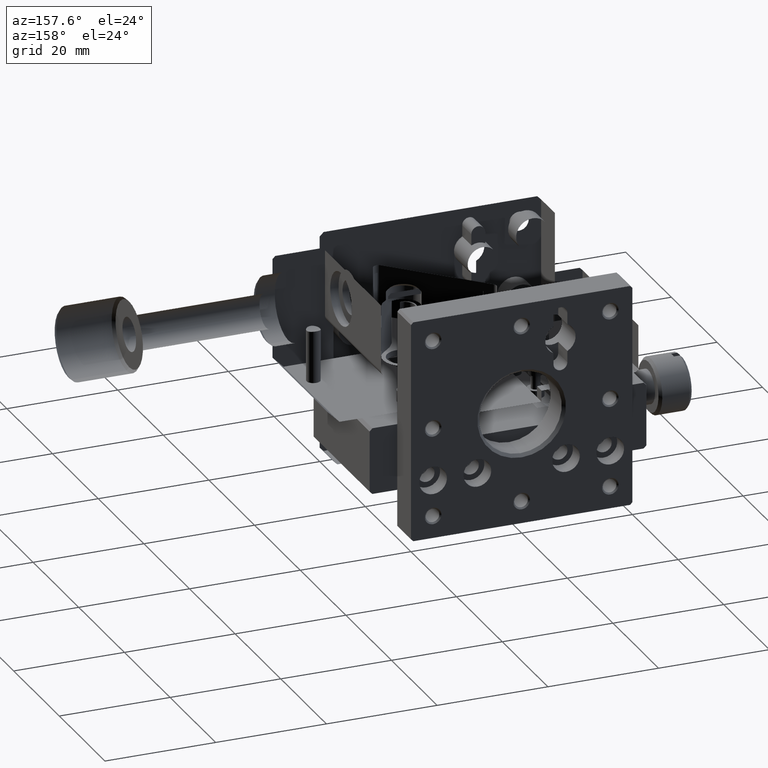
[diagram: clean part render]
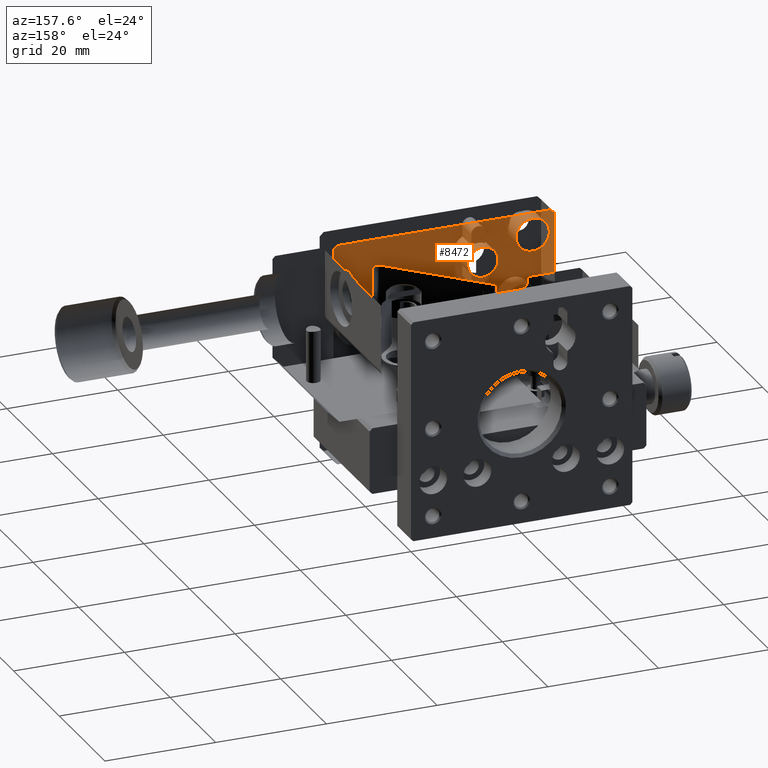
[diagram: same view with one face highlighted and labeled with its STEP entity id]
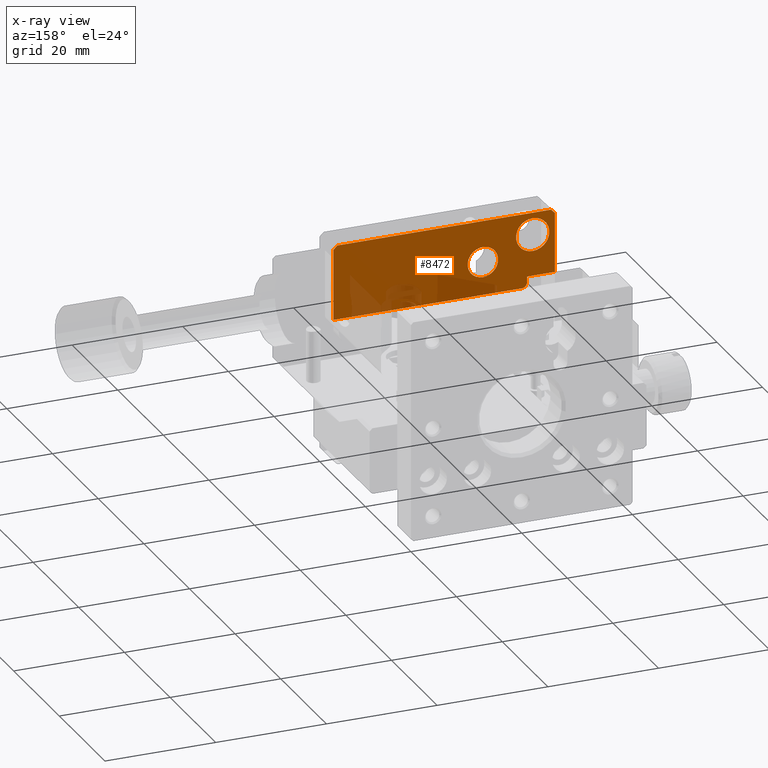
[diagram: x-ray of the same camera — body ghosted, the highlighted face saturated]
A machine part, auxiliary view. The second image highlights one B-rep face of the part: STEP entity #8472.
The next image is the same camera in x-ray: the body ghosted, the highlighted face saturated — about 17% of this face is hidden behind the body in this view.
In plain terms, the highlighted planar face has unit normal (0, 1, 0).
Its self-contained STEP definition (entity closure, byte-faithful):
#42 = FACE_BOUND ( 'NONE', #8290, .T. ) ;
#50 = EDGE_CURVE ( 'NONE', #5283, #6461, #9707, .T. ) ;
#164 = ORIENTED_EDGE ( 'NONE', *, *, #9928, .F. ) ;
#178 = VECTOR ( 'NONE', #10406, 1000.000000000000000 ) ;
#422 = LINE ( 'NONE', #2910, #178 ) ;
#1062 = VECTOR ( 'NONE', #4756, 1000.000000000000000 ) ;
#1484 = DIRECTION ( 'NONE',  ( 0.000000000000000000, 1.000000000000000000, 0.000000000000000000 ) ) ;
#1564 = CARTESIAN_POINT ( 'NONE',  ( 0.7099999999999999645, 6.000000000000000000, 0.000000000000000000 ) ) ;
#1786 = EDGE_CURVE ( 'NONE', #5462, #2592, #2306, .T. ) ;
#1910 = VERTEX_POINT ( 'NONE', #9202 ) ;
#1996 = DIRECTION ( 'NONE',  ( 0.000000000000000000, 0.000000000000000000, -1.000000000000000000 ) ) ;
#2100 = DIRECTION ( 'NONE',  ( -0.000000000000000000, 1.000000000000000000, -0.000000000000000000 ) ) ;
#2230 = ORIENTED_EDGE ( 'NONE', *, *, #4718, .F. ) ;
#2244 = CARTESIAN_POINT ( 'NONE',  ( 40.00000000000000000, 6.000000000000000000, -0.7099999999999999645 ) ) ;
#2306 = LINE ( 'NONE', #2244, #8936 ) ;
#2335 = DIRECTION ( 'NONE',  ( 0.000000000000000000, -0.000000000000000000, 1.000000000000000000 ) ) ;
#2461 = DIRECTION ( 'NONE',  ( -1.000000000000000000, -0.000000000000000000, 0.000000000000000000 ) ) ;
#2542 = CARTESIAN_POINT ( 'NONE',  ( 0.000000000000000000, 5.999999999999999112, -11.50000000000000000 ) ) ;
#2592 = VERTEX_POINT ( 'NONE', #6005 ) ;
#2699 = CARTESIAN_POINT ( 'NONE',  ( 39.28999999999999915, 6.000000000000000000, 0.000000000000000000 ) ) ;
#2756 = AXIS2_PLACEMENT_3D ( 'NONE', #4194, #8280, #6725 ) ;
#2907 = AXIS2_PLACEMENT_3D ( 'NONE', #3811, #2100, #1996 ) ;
#2910 = CARTESIAN_POINT ( 'NONE',  ( 0.000000000000000000, 6.000000000000000000, -39.28999999999999915 ) ) ;
#3158 = CARTESIAN_POINT ( 'NONE',  ( 0.000000000000000000, 6.000000000000000000, -0.7100000000000009637 ) ) ;
#3200 = ORIENTED_EDGE ( 'NONE', *, *, #50, .F. ) ;
#3276 = VERTEX_POINT ( 'NONE', #5984 ) ;
#3282 = EDGE_CURVE ( 'NONE', #1910, #1910, #6918, .T. ) ;
#3343 = FACE_BOUND ( 'NONE', #6517, .T. ) ;
#3443 = VECTOR ( 'NONE', #4921, 1000.000000000000000 ) ;
#3533 = ORIENTED_EDGE ( 'NONE', *, *, #7472, .F. ) ;
#3587 = LINE ( 'NONE', #6865, #5189 ) ;
#3775 = CARTESIAN_POINT ( 'NONE',  ( 5.000000000000009770, 5.999999999999998224, -12.50000000000000000 ) ) ;
#3811 = CARTESIAN_POINT ( 'NONE',  ( 6.000000000000009770, 5.999999999999998224, -12.50000000000000000 ) ) ;
#4194 = CARTESIAN_POINT ( 'NONE',  ( 4.000000000000000000, 6.000000000000000000, -4.000000000000000000 ) ) ;
#4232 = VERTEX_POINT ( 'NONE', #6239 ) ;
#4364 = EDGE_CURVE ( 'NONE', #3276, #9762, #8900, .T. ) ;
#4484 = CARTESIAN_POINT ( 'NONE',  ( 13.00000000000000178, 6.000000000000000000, -7.500000000000000000 ) ) ;
#4694 = ORIENTED_EDGE ( 'NONE', *, *, #3282, .F. ) ;
#4718 = EDGE_CURVE ( 'NONE', #9323, #3276, #9813, .T. ) ;
#4756 = DIRECTION ( 'NONE',  ( 0.7071067811865470176, -0.000000000000000000, 0.7071067811865480168 ) ) ;
#4921 = DIRECTION ( 'NONE',  ( 1.000000000000000000, -0.000000000000000000, 0.000000000000000000 ) ) ;
#5137 = DIRECTION ( 'NONE',  ( -1.000000000000000000, -0.000000000000000000, 0.000000000000000000 ) ) ;
#5189 = VECTOR ( 'NONE', #5137, 1000.000000000000000 ) ;
#5283 = VERTEX_POINT ( 'NONE', #9186 ) ;
#5377 = LINE ( 'NONE', #8652, #8440 ) ;
#5462 = VERTEX_POINT ( 'NONE', #7791 ) ;
#5556 = EDGE_CURVE ( 'NONE', #8316, #5283, #5377, .T. ) ;
#5765 = ORIENTED_EDGE ( 'NONE', *, *, #8651, .F. ) ;
#5843 = EDGE_CURVE ( 'NONE', #2592, #4232, #3587, .T. ) ;
#5965 = DIRECTION ( 'NONE',  ( 0.7071067811865486830, 0.000000000000000000, -0.7071067811865464625 ) ) ;
#5984 = CARTESIAN_POINT ( 'NONE',  ( 0.7099999999999999645, 6.000000000000000000, -5.416677968589100837E-32 ) ) ;
#5995 = CIRCLE ( 'NONE', #2907, 1.000000000000000888 ) ;
#6005 = CARTESIAN_POINT ( 'NONE',  ( 40.00000000000000000, 6.000000000000000000, -13.50000000000000000 ) ) ;
#6098 = DIRECTION ( 'NONE',  ( 0.000000000000000000, -1.000000000000000000, 0.000000000000000000 ) ) ;
#6239 = CARTESIAN_POINT ( 'NONE',  ( 6.000000000000009770, 5.999999999999998224, -13.50000000000000000 ) ) ;
#6303 = ORIENTED_EDGE ( 'NONE', *, *, #5556, .F. ) ;
#6432 = CARTESIAN_POINT ( 'NONE',  ( 4.000000000000000000, 6.000000000000000000, -6.999999999999989342 ) ) ;
#6461 = VERTEX_POINT ( 'NONE', #2542 ) ;
#6517 = EDGE_LOOP ( 'NONE', ( #3533 ) ) ;
#6725 = DIRECTION ( 'NONE',  ( 0.000000000000000000, 0.000000000000000000, -1.000000000000000000 ) ) ;
#6865 = CARTESIAN_POINT ( 'NONE',  ( 0.000000000000000000, 6.000000000000000000, -13.50000000000000000 ) ) ;
#6876 = CIRCLE ( 'NONE', #2756, 2.999999999999989786 ) ;
#6888 = ORIENTED_EDGE ( 'NONE', *, *, #9081, .F. ) ;
#6901 = VECTOR ( 'NONE', #5965, 1000.000000000000000 ) ;
#6918 = CIRCLE ( 'NONE', #9986, 2.749999999999999112 ) ;
#7472 = EDGE_CURVE ( 'NONE', #9003, #9003, #6876, .T. ) ;
#7601 = DIRECTION ( 'NONE',  ( 0.000000000000000000, 0.000000000000000000, -1.000000000000000000 ) ) ;
#7669 = ORIENTED_EDGE ( 'NONE', *, *, #4364, .F. ) ;
#7767 = VECTOR ( 'NONE', #2461, 1000.000000000000000 ) ;
#7791 = CARTESIAN_POINT ( 'NONE',  ( 40.00000000000000000, 6.000000000000000000, -0.7100000000000000755 ) ) ;
#8013 = PLANE ( 'NONE',  #9647 ) ;
#8068 = FACE_OUTER_BOUND ( 'NONE', #9918, .T. ) ;
#8146 = DIRECTION ( 'NONE',  ( -0.000000000000000000, -0.000000000000000000, -1.000000000000000000 ) ) ;
#8280 = DIRECTION ( 'NONE',  ( 0.000000000000000000, -1.000000000000000000, 0.000000000000000000 ) ) ;
#8290 = EDGE_LOOP ( 'NONE', ( #4694 ) ) ;
#8316 = VERTEX_POINT ( 'NONE', #3775 ) ;
#8440 = VECTOR ( 'NONE', #9398, 1000.000000000000000 ) ;
#8472 = ADVANCED_FACE ( 'NONE', ( #3343, #42, #8068 ), #8013, .F. ) ;
#8651 = EDGE_CURVE ( 'NONE', #9762, #5462, #10049, .T. ) ;
#8652 = CARTESIAN_POINT ( 'NONE',  ( 5.000000000000009770, 5.999999999999998224, -11.50000000000000000 ) ) ;
#8900 = LINE ( 'NONE', #1564, #3443 ) ;
#8936 = VECTOR ( 'NONE', #8146, 1000.000000000000000 ) ;
#8988 = ORIENTED_EDGE ( 'NONE', *, *, #5843, .F. ) ;
#9003 = VERTEX_POINT ( 'NONE', #6432 ) ;
#9081 = EDGE_CURVE ( 'NONE', #4232, #8316, #5995, .T. ) ;
#9103 = CARTESIAN_POINT ( 'NONE',  ( 0.000000000000000000, 6.000000000000000000, -11.50000000000000000 ) ) ;
#9186 = CARTESIAN_POINT ( 'NONE',  ( 5.000000000000009770, 5.999999999999998224, -11.50000000000000000 ) ) ;
#9202 = CARTESIAN_POINT ( 'NONE',  ( 13.00000000000000178, 6.000000000000000000, -10.24999999999999822 ) ) ;
#9313 = CARTESIAN_POINT ( 'NONE',  ( 39.28999999999999204, 6.000000000000000000, 9.080193194566097663E-16 ) ) ;
#9323 = VERTEX_POINT ( 'NONE', #9327 ) ;
#9327 = CARTESIAN_POINT ( 'NONE',  ( 2.710505431213761701E-17, 6.000000000000000000, -0.7100000000000011857 ) ) ;
#9398 = DIRECTION ( 'NONE',  ( 0.000000000000000000, 0.000000000000000000, 1.000000000000000000 ) ) ;
#9647 = AXIS2_PLACEMENT_3D ( 'NONE', #9690, #1484, #2335 ) ;
#9690 = CARTESIAN_POINT ( 'NONE',  ( 0.000000000000000000, 6.000000000000000000, 0.000000000000000000 ) ) ;
#9707 = LINE ( 'NONE', #9103, #7767 ) ;
#9748 = ORIENTED_EDGE ( 'NONE', *, *, #1786, .F. ) ;
#9762 = VERTEX_POINT ( 'NONE', #9313 ) ;
#9813 = LINE ( 'NONE', #3158, #1062 ) ;
#9918 = EDGE_LOOP ( 'NONE', ( #5765, #7669, #2230, #164, #3200, #6303, #6888, #8988, #9748 ) ) ;
#9928 = EDGE_CURVE ( 'NONE', #6461, #9323, #422, .T. ) ;
#9986 = AXIS2_PLACEMENT_3D ( 'NONE', #4484, #6098, #7601 ) ;
#10049 = LINE ( 'NONE', #2699, #6901 ) ;
#10406 = DIRECTION ( 'NONE',  ( -0.000000000000000000, -0.000000000000000000, 1.000000000000000000 ) ) ;